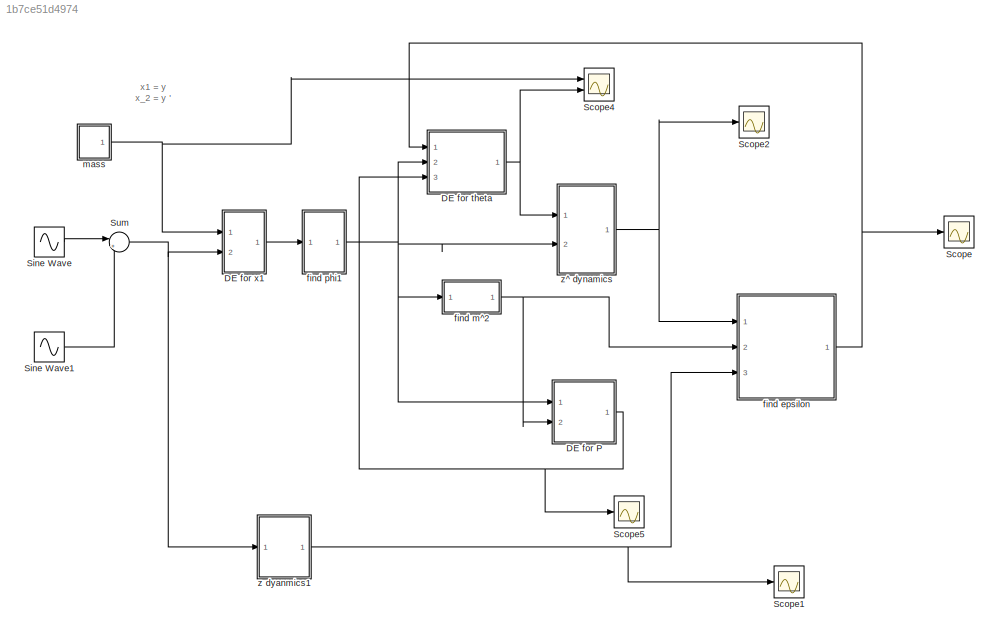
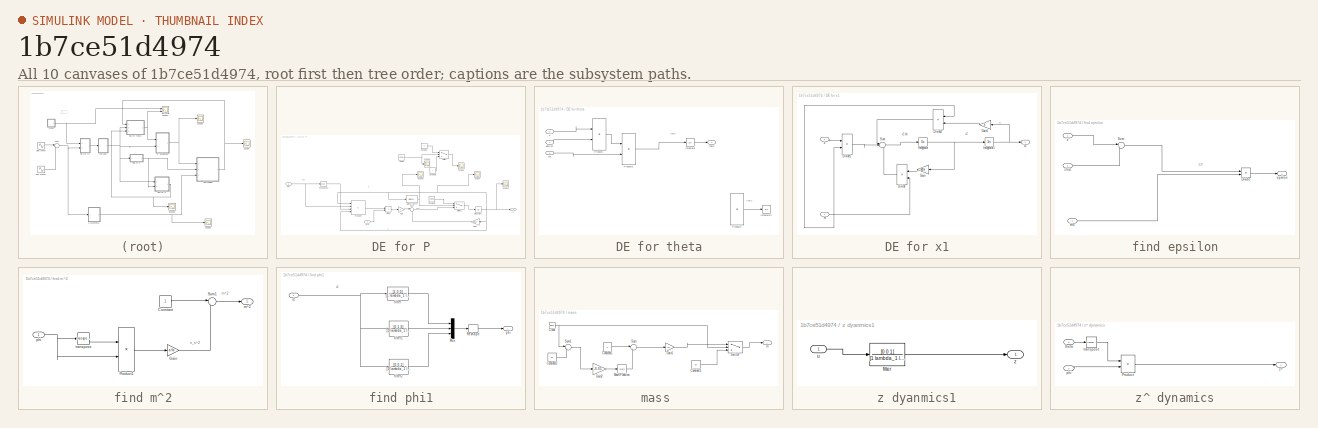
[diagram: thumbnail index - all 10 canvases of the model, root first then tree order]
MODEL slx_1b7ce51d4974
KIND model
CONFIG AbsTol = auto
CONFIG EnableMultiTasking = off
CONFIG FixedStep = 0.001
CONFIG MaxStep = auto
CONFIG MinStep = auto
CONFIG RelTol = 1e-3
CONFIG SampleTimeConstraint = Unconstrained
CONFIG Solver = ode4
CONFIG SolverName = ode4
CONFIG StartTime = 0.0
CONFIG StopTime = 300.0
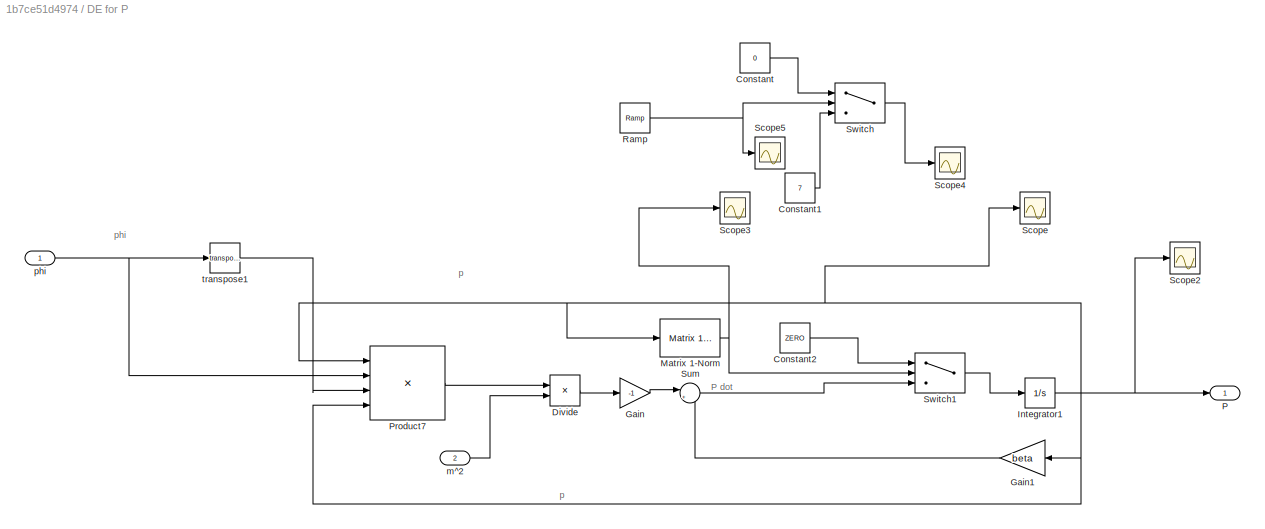
BLOCK [SubSystem] DE for P
  Ports = [2, 1]
  RequestExecContextInheritance = off
BLOCK [Constant] DE for P/Constant
  Value = 0
BLOCK [Constant] DE for P/Constant1
  Value = 7
BLOCK [Constant] DE for P/Constant2
  Value = ZERO
BLOCK [Product] DE for P/Divide
  InputSameDT = off
  Inputs = */
  OutDataTypeStr = Inherit: Inherit via internal rule
  Ports = [2, 1]
  RndMeth = Floor
  SaturateOnIntegerOverflow = off
BLOCK [Gain] DE for P/Gain
  Gain = -1
  OutDataTypeStr = Inherit: Inherit via internal rule
  ParamDataTypeStr = Inherit: Inherit via internal rule
  SaturateOnIntegerOverflow = off
BLOCK [Gain] DE for P/Gain1
  Gain = beta
  OutDataTypeStr = Inherit: Inherit via internal rule
  ParamDataTypeStr = Inherit: Inherit via internal rule
  SaturateOnIntegerOverflow = off
BLOCK [Integrator] DE for P/Integrator1
  InitialCondition = P0
  Ports = [1, 1]
BLOCK [Reference] DE for P/Matrix 1-Norm  REF=dspmtrx3/Matrix 
1-Norm
  Ports = [1, 1]
  SourceBlock = dspmtrx3/Matrix \n1-Norm
  SourceProductBaseCode = DS
  SourceProductName = DSP System Toolbox
  SourceType = Matrix 1-Norm
BLOCK [Outport] DE for P/P 
  IconDisplay = Port number
BLOCK [Product] DE for P/Product7
  InputSameDT = off
  Inputs = 4
  Multiplication = Matrix(*)
  OutDataTypeStr = Inherit: Inherit via internal rule
  Ports = [4, 1]
  RndMeth = Floor
  SaturateOnIntegerOverflow = off
BLOCK [Reference] DE for P/Ramp  REF=simulink/Sources/Ramp
  Ports = [0, 1]
  SourceBlock = simulink/Sources/Ramp
  SourceProductBaseCode = SL
  SourceProductName = Simulink
  SourceType = Ramp
BLOCK [Scope] DE for P/Scope
  Floating = off
  NumInputPorts = 1
  Ports = [1]
  ScopeSpecificationString = Simulink.scopes.TimeScopeBlockCfg('CurrentConfiguration', extmgr.ConfigurationSet(extmgr.Configuration('Core','General UI',true),extmgr.Configuration('Core','Source UI',true),extmgr.Configuration('Sources','WiredSimulink',true,'DataLoggingVariableName','ScopeData1'),extmgr.Configuration('Visuals','Time Domain',true,'SerializedDisplays',{struct('MinYLimReal','-197168.40564','MaxYLimReal','213686.04...<+1538ch>
BLOCK [Scope] DE for P/Scope2
  Floating = off
  NumInputPorts = 1
  Ports = [1]
  ScopeSpecificationString = Simulink.scopes.TimeScopeBlockCfg('CurrentConfiguration', extmgr.ConfigurationSet(extmgr.Configuration('Core','General UI',true),extmgr.Configuration('Core','Source UI',true),extmgr.Configuration('Sources','WiredSimulink',true,'DataLoggingVariableName','ScopeData3'),extmgr.Configuration('Visuals','Time Domain',true,'SerializedDisplays',{struct('MinYLimReal','-197168.40564','MaxYLimReal','213686.04...<+1563ch>
BLOCK [Scope] DE for P/Scope3
  Floating = off
  NumInputPorts = 1
  Ports = [1]
  ScopeSpecificationString = Simulink.scopes.TimeScopeBlockCfg('CurrentConfiguration', extmgr.ConfigurationSet(extmgr.Configuration('Core','General UI',true),extmgr.Configuration('Core','Source UI',true),extmgr.Configuration('Sources','WiredSimulink',true,'DataLoggingVariableName','ScopeData4'),extmgr.Configuration('Visuals','Time Domain',true,'SerializedDisplays',{struct('MinYLimReal','2.74895','MaxYLimReal','5.25941','YLabe...<+1419ch>
BLOCK [Scope] DE for P/Scope4
  Floating = off
  NumInputPorts = 1
  Ports = [1]
  ScopeSpecificationString = Simulink.scopes.TimeScopeBlockCfg('CurrentConfiguration', extmgr.ConfigurationSet(extmgr.Configuration('Core','General UI',true),extmgr.Configuration('Core','Source UI',true),extmgr.Configuration('Sources','WiredSimulink',true,'DataLoggingVariableName','ScopeData1'),extmgr.Configuration('Visuals','Time Domain',true,'SerializedDisplays',{struct('MinYLimReal','-0.875','MaxYLimReal','7.875','YLabelRe...<+1382ch>
BLOCK [Scope] DE for P/Scope5
  Floating = off
  NumInputPorts = 1
  Ports = [1]
  ScopeSpecificationString = Simulink.scopes.TimeScopeBlockCfg('CurrentConfiguration', extmgr.ConfigurationSet(extmgr.Configuration('Core','General UI',true),extmgr.Configuration('Core','Source UI',true),extmgr.Configuration('Sources','WiredSimulink',true,'DataLoggingVariableName','ScopeData2'),extmgr.Configuration('Visuals','Time Domain',true,'SerializedDisplays',{struct('MinYLimReal','-37.5','MaxYLimReal','337.5','YLabelRea...<+1349ch>
BLOCK [Sum] DE for P/Sum
  IconShape = round
  InputSameDT = off
  Inputs = |++
  OutDataTypeStr = Inherit: Inherit via internal rule
  Ports = [2, 1]
  SaturateOnIntegerOverflow = off
BLOCK [Switch] DE for P/Switch
  Criteria = u2 > Threshold
  InputSameDT = off
  SaturateOnIntegerOverflow = off
  Threshold = 5
BLOCK [Switch] DE for P/Switch1
  Criteria = u2 > Threshold
  InputSameDT = off
  SaturateOnIntegerOverflow = off
  Threshold = R_0
BLOCK [Inport] DE for P/m^2
  IconDisplay = Port number
  Port = 2
BLOCK [Inport] DE for P/phi 
  IconDisplay = Port number
BLOCK [Math] DE for P/transpose1
  Operator = transpose
  Ports = [1, 1]
BLOCK [SubSystem] DE for theta
  Ports = [3, 1]
  RequestExecContextInheritance = off
BLOCK [Integrator] DE for theta/Integrator
  Ports = [1, 1]
BLOCK [Integrator] DE for theta/Integrator1
  Commented = on
  Ports = [1, 1]
BLOCK [Inport] DE for theta/P
  IconDisplay = Port number
  Port = 3
BLOCK [Product] DE for theta/Product1
  InputSameDT = off
  OutDataTypeStr = Inherit: Inherit via internal rule
  Ports = [2, 1]
  RndMeth = Floor
  SaturateOnIntegerOverflow = off
BLOCK [Product] DE for theta/Product2
  Commented = on
  InputSameDT = off
  Inputs = 3
  Multiplication = Matrix(*)
  OutDataTypeStr = Inherit: Inherit via internal rule
  Ports = [3, 1]
  RndMeth = Floor
  SaturateOnIntegerOverflow = off
BLOCK [Product] DE for theta/Product3
  InputSameDT = off
  Multiplication = Matrix(*)
  OutDataTypeStr = Inherit: Inherit via internal rule
  Ports = [2, 1]
  RndMeth = Floor
  SaturateOnIntegerOverflow = off
BLOCK [Inport] DE for theta/epsilon 
  IconDisplay = Port number
BLOCK [Inport] DE for theta/phi
  IconDisplay = Port number
  Port = 2
BLOCK [Outport] DE for theta/theta 
  IconDisplay = Port number
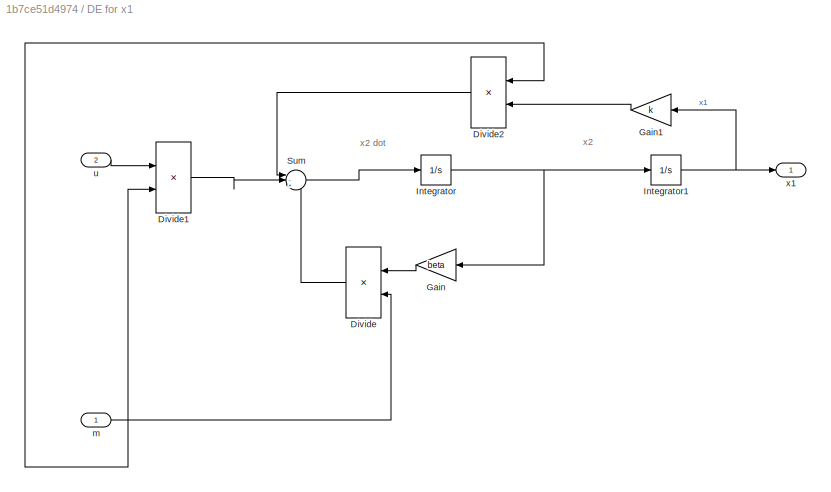
BLOCK [SubSystem] DE for x1
  Ports = [2, 1]
  RequestExecContextInheritance = off
BLOCK [Product] DE for x1/Divide
  InputSameDT = off
  Inputs = */
  OutDataTypeStr = Inherit: Inherit via internal rule
  Ports = [2, 1]
  RndMeth = Floor
  SaturateOnIntegerOverflow = off
BLOCK [Product] DE for x1/Divide1
  InputSameDT = off
  Inputs = */
  OutDataTypeStr = Inherit: Inherit via internal rule
  Ports = [2, 1]
  RndMeth = Floor
  SaturateOnIntegerOverflow = off
BLOCK [Product] DE for x1/Divide2
  InputSameDT = off
  Inputs = /*
  OutDataTypeStr = Inherit: Inherit via internal rule
  Ports = [2, 1]
  RndMeth = Floor
  SaturateOnIntegerOverflow = off
BLOCK [Gain] DE for x1/Gain
  Gain = beta
  OutDataTypeStr = Inherit: Inherit via internal rule
  ParamDataTypeStr = Inherit: Inherit via internal rule
  SaturateOnIntegerOverflow = off
BLOCK [Gain] DE for x1/Gain1
  Gain = k
  OutDataTypeStr = Inherit: Inherit via internal rule
  ParamDataTypeStr = Inherit: Inherit via internal rule
  SaturateOnIntegerOverflow = off
BLOCK [Integrator] DE for x1/Integrator
  Ports = [1, 1]
BLOCK [Integrator] DE for x1/Integrator1
  Ports = [1, 1]
BLOCK [Sum] DE for x1/Sum
  IconShape = round
  InputSameDT = off
  Inputs = |-+-
  OutDataTypeStr = Inherit: Inherit via internal rule
  Ports = [3, 1]
  SaturateOnIntegerOverflow = off
BLOCK [Inport] DE for x1/m 
  IconDisplay = Port number
BLOCK [Inport] DE for x1/u
  IconDisplay = Port number
  Port = 2
BLOCK [Outport] DE for x1/x1 
  IconDisplay = Port number
BLOCK [Scope] Scope
  Floating = off
  NumInputPorts = 1
  Ports = [1]
  ScopeSpecificationString = Simulink.scopes.TimeScopeBlockCfg('CurrentConfiguration', extmgr.ConfigurationSet(extmgr.Configuration('Core','General UI',true),extmgr.Configuration('Core','Source UI',true),extmgr.Configuration('Sources','WiredSimulink',true),extmgr.Configuration('Visuals','Time Domain',true,'SerializedDisplays',{struct('MinYLimReal','-1.60838','MaxYLimReal','0.96767','YLabelReal','','MinYLimMag','0.00000','MaxY...<+1405ch>
BLOCK [Scope] Scope1
  Floating = off
  NumInputPorts = 1
  Ports = [1]
  ScopeSpecificationString = Simulink.scopes.TimeScopeBlockCfg('CurrentConfiguration', extmgr.ConfigurationSet(extmgr.Configuration('Core','General UI',true),extmgr.Configuration('Core','Source UI',true),extmgr.Configuration('Sources','WiredSimulink',true,'DataLoggingVariableName','ScopeData1'),extmgr.Configuration('Visuals','Time Domain',true,'SerializedDisplays',{struct('MinYLimReal','-1.42451','MaxYLimReal','1.41376','YLab...<+1418ch>
BLOCK [Scope] Scope2
  Floating = off
  NumInputPorts = 1
  Ports = [1]
  ScopeSpecificationString = Simulink.scopes.TimeScopeBlockCfg('CurrentConfiguration', extmgr.ConfigurationSet(extmgr.Configuration('Core','General UI',true),extmgr.Configuration('Core','Source UI',true),extmgr.Configuration('Sources','WiredSimulink',true,'DataLoggingVariableName','ScopeData2'),extmgr.Configuration('Visuals','Time Domain',true,'SerializedDisplays',{struct('MinYLimReal','-15.6234','MaxYLimReal','15.13139','YLa...<+1391ch>
BLOCK [Scope] Scope4
  Floating = off
  NumInputPorts = 2
  Ports = [2]
  ScopeSpecificationString = Simulink.scopes.TimeScopeBlockCfg('CurrentConfiguration', extmgr.ConfigurationSet(extmgr.Configuration('Core','General UI',true),extmgr.Configuration('Core','Source UI',true),extmgr.Configuration('Sources','WiredSimulink',true,'DataLoggingVariableName','ScopeData3'),extmgr.Configuration('Visuals','Time Domain',true,'SerializedDisplays',{struct('MinYLimReal','-4.84794','MaxYLimReal','43.6315','YLab...<+1469ch>
BLOCK [Scope] Scope5
  Floating = off
  NumInputPorts = 1
  Ports = [1]
  ScopeSpecificationString = Simulink.scopes.TimeScopeBlockCfg('CurrentConfiguration', extmgr.ConfigurationSet(extmgr.Configuration('Core','General UI',true),extmgr.Configuration('Core','Source UI',true),extmgr.Configuration('Sources','WiredSimulink',true,'DataLoggingVariableName','ScopeData1'),extmgr.Configuration('Visuals','Time Domain',true,'SerializedDisplays',{struct('MinYLimReal','-6.28738','MaxYLimReal','56.29609','YLa...<+1521ch>
BLOCK [Sin] Sine Wave
  Amplitude = 5
  Phase = 0.3
  Ports = [0, 1]
  SampleTime = 0
BLOCK [Sin] Sine Wave1
  Amplitude = 7
  Frequency = 2
  Ports = [0, 1]
  SampleTime = 0
BLOCK [Sum] Sum
  IconShape = round
  InputSameDT = off
  Inputs = |++
  OutDataTypeStr = Inherit: Inherit via internal rule
  Ports = [2, 1]
  SaturateOnIntegerOverflow = off
BLOCK [SubSystem] find epsilon
  Ports = [3, 1]
  RequestExecContextInheritance = off
BLOCK [Product] find epsilon/Divide
  InputSameDT = off
  Inputs = */
  OutDataTypeStr = Inherit: Inherit via internal rule
  Ports = [2, 1]
  RndMeth = Floor
  SaturateOnIntegerOverflow = off
BLOCK [Sum] find epsilon/Sum
  IconShape = round
  InputSameDT = off
  Inputs = |+-
  OutDataTypeStr = Inherit: Inherit via internal rule
  Ports = [2, 1]
  SaturateOnIntegerOverflow = off
BLOCK [Outport] find epsilon/epsilon 
  IconDisplay = Port number
BLOCK [Inport] find epsilon/m^2
  IconDisplay = Port number
  Port = 2
BLOCK [Inport] find epsilon/z
  IconDisplay = Port number
  Port = 3
BLOCK [Inport] find epsilon/z hat
  IconDisplay = Port number
BLOCK [SubSystem] find m^2
  Ports = [1, 1]
  RequestExecContextInheritance = off
BLOCK [Constant] find m^2/Constant
BLOCK [Gain] find m^2/Gain
  Gain = alfa
  OutDataTypeStr = Inherit: Inherit via internal rule
  ParamDataTypeStr = Inherit: Inherit via internal rule
  SaturateOnIntegerOverflow = off
BLOCK [Product] find m^2/Product1
  InputSameDT = off
  Multiplication = Matrix(*)
  OutDataTypeStr = Inherit: Inherit via internal rule
  Ports = [2, 1]
  RndMeth = Floor
  SaturateOnIntegerOverflow = off
BLOCK [Sum] find m^2/Sum1
  IconShape = round
  InputSameDT = off
  Inputs = |++
  OutDataTypeStr = Inherit: Inherit via internal rule
  Ports = [2, 1]
  SaturateOnIntegerOverflow = off
BLOCK [Outport] find m^2/m^2 
  IconDisplay = Port number
BLOCK [Inport] find m^2/phi 
  IconDisplay = Port number
BLOCK [Math] find m^2/transpose
  Operator = transpose
  Ports = [1, 1]
BLOCK [SubSystem] find phi1
  Ports = [1, 1]
  RequestExecContextInheritance = off
BLOCK [Mux] find phi1/Mux
  DisplayOption = bar
  Inputs = 3
  Ports = [3, 1]
BLOCK [Reshape] find phi1/Reshape
  OutputDimensionality = Column vector (2-D)
  Ports = [1, 1]
BLOCK [TransferFcn] find phi1/filter
  Denominator = [1 lambda_1 lambda_0]
  Numerator = [1 0 0]
BLOCK [TransferFcn] find phi1/filter1
  Denominator = [1 lambda_1 lambda_0]
  Numerator = [0 1 0]
BLOCK [TransferFcn] find phi1/filter2
  Denominator = [1 lambda_1 lambda_0]
  Numerator = [0 0 1]
BLOCK [Outport] find phi1/phi 
  IconDisplay = Port number
BLOCK [Inport] find phi1/x1
  IconDisplay = Port number
BLOCK [SubSystem] mass 
  Ports = [0, 1]
  RequestExecContextInheritance = off
BLOCK [Clock] mass /Clock
BLOCK [Constant] mass /Constant1
  Value = 2
BLOCK [Constant] mass /Constant2
  Value = 20
BLOCK [Constant] mass /Constant3
  Value = 20
BLOCK [Gain] mass /Gain1
  Gain = 20
  OutDataTypeStr = Inherit: Inherit via internal rule
  ParamDataTypeStr = Inherit: Inherit via internal rule
  SaturateOnIntegerOverflow = off
BLOCK [Gain] mass /Gain2
  Gain = -0.01
  OutDataTypeStr = Inherit: Inherit via internal rule
  ParamDataTypeStr = Inherit: Inherit via internal rule
  SaturateOnIntegerOverflow = off
BLOCK [Math] mass /Math Function
  Ports = [1, 1]
BLOCK [Sum] mass /Sum
  IconShape = round
  InputSameDT = off
  Inputs = |+-
  OutDataTypeStr = Inherit: Inherit via internal rule
  Ports = [2, 1]
  SaturateOnIntegerOverflow = off
BLOCK [Sum] mass /Sum1
  IconShape = round
  InputSameDT = off
  Inputs = |+-
  OutDataTypeStr = Inherit: Inherit via internal rule
  Ports = [2, 1]
  SaturateOnIntegerOverflow = off
BLOCK [Switch] mass /Switch
  InputSameDT = off
  SaturateOnIntegerOverflow = off
  Threshold = 20
BLOCK [Outport] mass /m
  IconDisplay = Port number
BLOCK [SubSystem] z dyanmics1
  Ports = [1, 1]
  RequestExecContextInheritance = off
BLOCK [TransferFcn] z dyanmics1/filter
  Denominator = [1 lambda_1 lambda_0]
  Numerator = [0 0 1]
BLOCK [Inport] z dyanmics1/u
  IconDisplay = Port number
BLOCK [Outport] z dyanmics1/z 
  IconDisplay = Port number
BLOCK [SubSystem] z^ dynamics
  Ports = [2, 1]
  RequestExecContextInheritance = off
BLOCK [Product] z^ dynamics/Product
  InputSameDT = off
  Multiplication = Matrix(*)
  OutDataTypeStr = Inherit: Inherit via internal rule
  Ports = [2, 1]
  RndMeth = Floor
  SaturateOnIntegerOverflow = off
BLOCK [Inport] z^ dynamics/phi
  IconDisplay = Port number
  Port = 2
BLOCK [Inport] z^ dynamics/theta
  IconDisplay = Port number
BLOCK [Math] z^ dynamics/transpose
  Operator = transpose
  Ports = [1, 1]
BLOCK [Outport] z^ dynamics/z^ 
  IconDisplay = Port number
ANNOTATION (root): x1 = y x_2 = y '
ANNOTATION DE for P: P dot
ANNOTATION DE for P: p
ANNOTATION DE for P: phi
ANNOTATION DE for theta: theta '
ANNOTATION DE for x1: x2
ANNOTATION DE for x1: x2 dot
ANNOTATION find epsilon: z-z^
ANNOTATION find m^2: m^2
ANNOTATION find m^2: n_s^2
ANNOTATION find phi1: x1
LINE DE for P/Constant1:1 -> DE for P/Switch:3
LINE DE for P/Constant2:1 -> DE for P/Switch1:1
LINE DE for P/Constant:1 -> DE for P/Switch:1
LINE DE for P/Divide:1 -> DE for P/Gain:1
LINE DE for P/Gain1:1 -> DE for P/Sum:2
LINE DE for P/Gain:1 -> DE for P/Sum:1
NET DE for P/Integrator1:1 -> DE for P/Gain1:1, DE for P/Matrix 1-Norm:1, DE for P/P :1, DE for P/Product7:1, DE for P/Product7:4, DE for P/Scope2:1, DE for P/Scope:1
NET DE for P/Matrix 1-Norm:1 -> DE for P/Scope3:1, DE for P/Switch1:2
LINE DE for P/Product7:1 -> DE for P/Divide:1
NET DE for P/Ramp:1 -> DE for P/Scope5:1, DE for P/Switch:2
LINE DE for P/Sum:1 -> DE for P/Switch1:3
LINE DE for P/Switch1:1 -> DE for P/Integrator1:1
LINE DE for P/Switch:1 -> DE for P/Scope4:1
LINE DE for P/m^2:1 -> DE for P/Divide:2
NET DE for P/phi :1 -> DE for P/Product7:2, DE for P/transpose1:1
LINE DE for P/transpose1:1 -> DE for P/Product7:3
NET DE for P:1 -> DE for theta:3, Scope5:1
LINE DE for theta/Integrator:1 -> DE for theta/theta :1
LINE DE for theta/P:1 -> DE for theta/Product1:1
LINE DE for theta/Product1:1 -> DE for theta/Product3:1
LINE DE for theta/Product2:1 -> DE for theta/Integrator1:1
LINE DE for theta/Product3:1 -> DE for theta/Integrator:1
LINE DE for theta/epsilon :1 -> DE for theta/Product1:2
LINE DE for theta/phi:1 -> DE for theta/Product3:2
NET DE for theta:1 -> Scope4:2, z^ dynamics:1
LINE DE for x1/Divide1:1 -> DE for x1/Sum:2
LINE DE for x1/Divide2:1 -> DE for x1/Sum:1
LINE DE for x1/Divide:1 -> DE for x1/Sum:3
LINE DE for x1/Gain1:1 -> DE for x1/Divide2:2
LINE DE for x1/Gain:1 -> DE for x1/Divide:1
NET DE for x1/Integrator1:1 -> DE for x1/Gain1:1, DE for x1/x1 :1
NET DE for x1/Integrator:1 -> DE for x1/Gain:1, DE for x1/Integrator1:1
LINE DE for x1/Sum:1 -> DE for x1/Integrator:1
NET DE for x1/m :1 -> DE for x1/Divide1:2, DE for x1/Divide2:1, DE for x1/Divide:2
LINE DE for x1/u:1 -> DE for x1/Divide1:1
LINE DE for x1:1 -> find phi1:1
LINE Sine Wave1:1 -> Sum:2
LINE Sine Wave:1 -> Sum:1
NET Sum:1 -> DE for x1:2, z dyanmics1:1
LINE find epsilon/Divide:1 -> find epsilon/epsilon :1
LINE find epsilon/Sum:1 -> find epsilon/Divide:1
LINE find epsilon/m^2:1 -> find epsilon/Divide:2
LINE find epsilon/z hat:1 -> find epsilon/Sum:2
LINE find epsilon/z:1 -> find epsilon/Sum:1
NET find epsilon:1 -> DE for theta:1, Scope:1
LINE find m^2/Constant:1 -> find m^2/Sum1:1
LINE find m^2/Gain:1 -> find m^2/Sum1:2
LINE find m^2/Product1:1 -> find m^2/Gain:1
LINE find m^2/Sum1:1 -> find m^2/m^2 :1
NET find m^2/phi :1 -> find m^2/Product1:2, find m^2/transpose:1
LINE find m^2/transpose:1 -> find m^2/Product1:1
NET find m^2:1 -> DE for P:2, find epsilon:2
LINE find phi1/Mux:1 -> find phi1/Reshape:1
LINE find phi1/Reshape:1 -> find phi1/phi :1
LINE find phi1/filter1:1 -> find phi1/Mux:2
LINE find phi1/filter2:1 -> find phi1/Mux:3
LINE find phi1/filter:1 -> find phi1/Mux:1
NET find phi1/x1:1 -> find phi1/filter1:1, find phi1/filter2:1, find phi1/filter:1
NET find phi1:1 -> DE for P:1, DE for theta:2, find m^2:1, z^ dynamics:2
NET mass /Clock:1 -> mass /Sum1:1, mass /Switch:2
LINE mass /Constant1:1 -> mass /Sum:1
LINE mass /Constant2:1 -> mass /Sum1:2
LINE mass /Constant3:1 -> mass /Switch:3
LINE mass /Gain1:1 -> mass /Switch:1
LINE mass /Gain2:1 -> mass /Math Function:1
LINE mass /Math Function:1 -> mass /Sum:2
LINE mass /Sum1:1 -> mass /Gain2:1
LINE mass /Sum:1 -> mass /Gain1:1
LINE mass /Switch:1 -> mass /m:1
NET mass :1 -> DE for x1:1, Scope4:1
LINE z dyanmics1/filter:1 -> z dyanmics1/z :1
LINE z dyanmics1/u:1 -> z dyanmics1/filter:1
NET z dyanmics1:1 -> Scope1:1, find epsilon:3
LINE z^ dynamics/Product:1 -> z^ dynamics/z^ :1
LINE z^ dynamics/phi:1 -> z^ dynamics/Product:2
LINE z^ dynamics/theta:1 -> z^ dynamics/transpose:1
LINE z^ dynamics/transpose:1 -> z^ dynamics/Product:1
NET z^ dynamics:1 -> Scope2:1, find epsilon:1
note: NET lines group one-source signal fan-out (src -> all destinations, sorted); 1:1 wires keep LINE
